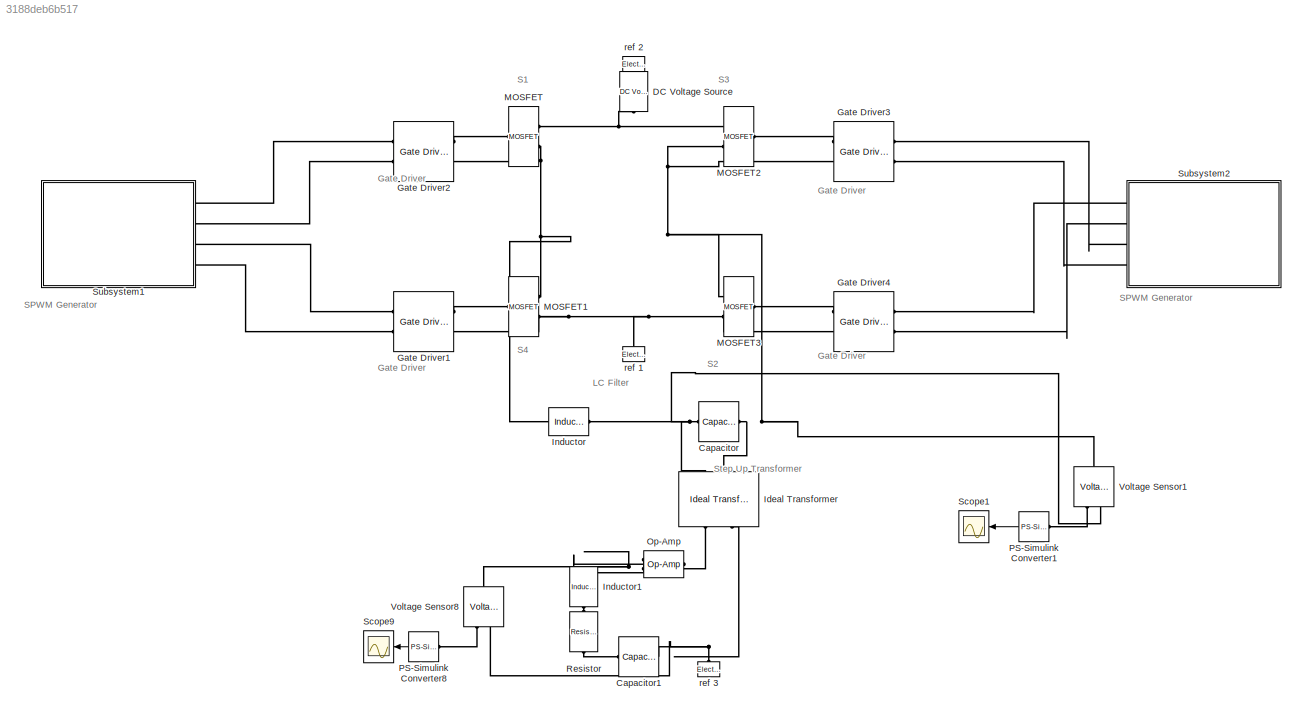
MODEL slx_3188deb6b517
KIND model
CONFIG AbsTol = auto
CONFIG EnableMultiTasking = off
CONFIG FixedStep = auto
CONFIG MaxStep = auto
CONFIG MinStep = auto
CONFIG RelTol = 1e-3
CONFIG SampleTimeConstraint = Unconstrained
CONFIG Solver = VariableStepAuto
CONFIG SolverName = VariableStepAuto
CONFIG StartTime = 0.0
CONFIG StopTime = 0.5
BLOCK [Reference] Capacitor  REF=fl_lib/Electrical/Electrical Elements/Capacitor
  Ports = [0, 0, 0, 0, 0, 1, 1]
  SourceBlock = fl_lib/Electrical/Electrical Elements/Capacitor
  SourceProductBaseCode = SS
  SourceProductName = Simscape
  SourceType = Capacitor
BLOCK [Reference] Capacitor1  REF=elec_lib/Passive Devices/Capacitor
  Ports = [0, 0, 0, 0, 0, 1, 1]
  SourceBlock = elec_lib/Passive Devices/Capacitor
  SourceProductBaseCode = SN
  SourceProductName = Simscape Electronics
  SourceType = Capacitor
BLOCK [Reference] DC Voltage Source  REF=fl_lib/Electrical/Electrical Sources/DC Voltage Source
  Ports = [0, 0, 0, 0, 0, 1, 1]
  SourceBlock = fl_lib/Electrical/Electrical Sources/DC Voltage Source
  SourceProductBaseCode = SS
  SourceProductName = Simscape
  SourceType = DC Voltage Source
BLOCK [Reference] Gate Driver1  REF=elec_lib/Actuators & Drivers/Drivers/Gate Driver
  Ports = [0, 0, 0, 0, 0, 2, 2]
  SourceBlock = elec_lib/Actuators & Drivers/Drivers/Gate Driver
  SourceProductBaseCode = SN
  SourceProductName = Simscape Electronics
  SourceType = Gate Driver
BLOCK [Reference] Gate Driver2  REF=elec_lib/Actuators & Drivers/Drivers/Gate Driver
  Ports = [0, 0, 0, 0, 0, 2, 2]
  SourceBlock = elec_lib/Actuators & Drivers/Drivers/Gate Driver
  SourceProductBaseCode = SN
  SourceProductName = Simscape Electronics
  SourceType = Gate Driver
BLOCK [Reference] Gate Driver3  REF=elec_lib/Actuators & Drivers/Drivers/Gate Driver
  Ports = [0, 0, 0, 0, 0, 2, 2]
  SourceBlock = elec_lib/Actuators & Drivers/Drivers/Gate Driver
  SourceProductBaseCode = SN
  SourceProductName = Simscape Electronics
  SourceType = Gate Driver
BLOCK [Reference] Gate Driver4  REF=elec_lib/Actuators & Drivers/Drivers/Gate Driver
  Ports = [0, 0, 0, 0, 0, 2, 2]
  SourceBlock = elec_lib/Actuators & Drivers/Drivers/Gate Driver
  SourceProductBaseCode = SN
  SourceProductName = Simscape Electronics
  SourceType = Gate Driver
BLOCK [Reference] Ideal Transformer  REF=fl_lib/Electrical/Electrical Elements/Ideal Transformer
  Ports = [0, 0, 0, 0, 0, 2, 2]
  SourceBlock = fl_lib/Electrical/Electrical Elements/Ideal Transformer
  SourceProductBaseCode = SS
  SourceProductName = Simscape
  SourceType = Ideal Transformer
BLOCK [Reference] Inductor  REF=elec_lib/Passive Devices/Inductor
  Ports = [0, 0, 0, 0, 0, 1, 1]
  SourceBlock = elec_lib/Passive Devices/Inductor
  SourceProductBaseCode = SN
  SourceProductName = Simscape Electronics
  SourceType = Inductor
BLOCK [Reference] Inductor1  REF=elec_lib/Passive Devices/Inductor
  Ports = [0, 0, 0, 0, 0, 1, 1]
  SourceBlock = elec_lib/Passive Devices/Inductor
  SourceProductBaseCode = SN
  SourceProductName = Simscape Electronics
  SourceType = Inductor
BLOCK [Reference] MOSFET  REF=pe_lib/Semiconductors/Fundamental
Components/MOSFET
  Ports = [0, 0, 0, 0, 0, 1, 2]
  SourceBlock = pe_lib/Semiconductors/Fundamental\nComponents/MOSFET
  SourceProductBaseCode = PS
  SourceProductName = Simscape Power Systems
  SourceType = MOSFET
BLOCK [Reference] MOSFET1  REF=pe_lib/Semiconductors/Fundamental
Components/MOSFET
  Ports = [0, 0, 0, 0, 0, 1, 2]
  SourceBlock = pe_lib/Semiconductors/Fundamental\nComponents/MOSFET
  SourceProductBaseCode = PS
  SourceProductName = Simscape Power Systems
  SourceType = MOSFET
BLOCK [Reference] MOSFET2  REF=pe_lib/Semiconductors/Fundamental
Components/MOSFET
  Ports = [0, 0, 0, 0, 0, 1, 2]
  SourceBlock = pe_lib/Semiconductors/Fundamental\nComponents/MOSFET
  SourceProductBaseCode = PS
  SourceProductName = Simscape Power Systems
  SourceType = MOSFET
BLOCK [Reference] MOSFET3  REF=pe_lib/Semiconductors/Fundamental
Components/MOSFET
  Ports = [0, 0, 0, 0, 0, 1, 2]
  SourceBlock = pe_lib/Semiconductors/Fundamental\nComponents/MOSFET
  SourceProductBaseCode = PS
  SourceProductName = Simscape Power Systems
  SourceType = MOSFET
BLOCK [Reference] Op-Amp  REF=fl_lib/Electrical/Electrical Elements/Op-Amp
  Ports = [0, 0, 0, 0, 0, 2, 1]
  SourceBlock = fl_lib/Electrical/Electrical Elements/Op-Amp
  SourceProductBaseCode = SS
  SourceProductName = Simscape
  SourceType = Op-Amp
BLOCK [Reference] PS-Simulink Converter1  REF=nesl_utility/PS-Simulink
Converter
  Ports = [0, 1, 0, 0, 0, 1]
  SourceBlock = nesl_utility/PS-Simulink\nConverter
  SourceProductBaseCode = SS
  SourceProductName = Simscape
  SourceType = PS-Simulink\nConverter
BLOCK [Reference] PS-Simulink Converter8  REF=nesl_utility/PS-Simulink
Converter
  Ports = [0, 1, 0, 0, 0, 1]
  SourceBlock = nesl_utility/PS-Simulink\nConverter
  SourceProductBaseCode = SS
  SourceProductName = Simscape
  SourceType = PS-Simulink\nConverter
BLOCK [Reference] Resistor  REF=elec_lib/Passive Devices/Resistor
  Ports = [0, 0, 0, 0, 0, 1, 1]
  SourceBlock = elec_lib/Passive Devices/Resistor
  SourceProductBaseCode = SN
  SourceProductName = Simscape Electronics
  SourceType = Resistor
BLOCK [Scope] Scope1
  Floating = off
  NumInputPorts = 1
  Ports = [1]
  ScopeSpecificationString = Simulink.scopes.TimeScopeBlockCfg('CurrentConfiguration', extmgr.ConfigurationSet(extmgr.Configuration('Core','General UI',true),extmgr.Configuration('Core','Source UI',true),extmgr.Configuration('Sources','WiredSimulink',true,'DataLoggingVariableName','ScopeData1'),extmgr.Configuration('Visuals','Time Domain',true,'SerializedDisplays',{struct('MinYLimReal','-20.10195','MaxYLimReal','19.04852','YL...<+1460ch>
BLOCK [Scope] Scope9
  Floating = off
  NumInputPorts = 1
  Ports = [1]
  ScopeSpecificationString = Simulink.scopes.TimeScopeBlockCfg('CurrentConfiguration', extmgr.ConfigurationSet(extmgr.Configuration('Core','General UI',true),extmgr.Configuration('Core','Source UI',true),extmgr.Configuration('Sources','WiredSimulink',true,'DataLoggingVariableName','ScopeData4'),extmgr.Configuration('Visuals','Time Domain',true,'SerializedDisplays',{struct('MinYLimReal','-390.34739','MaxYLimReal','391.3346','Y...<+1745ch>
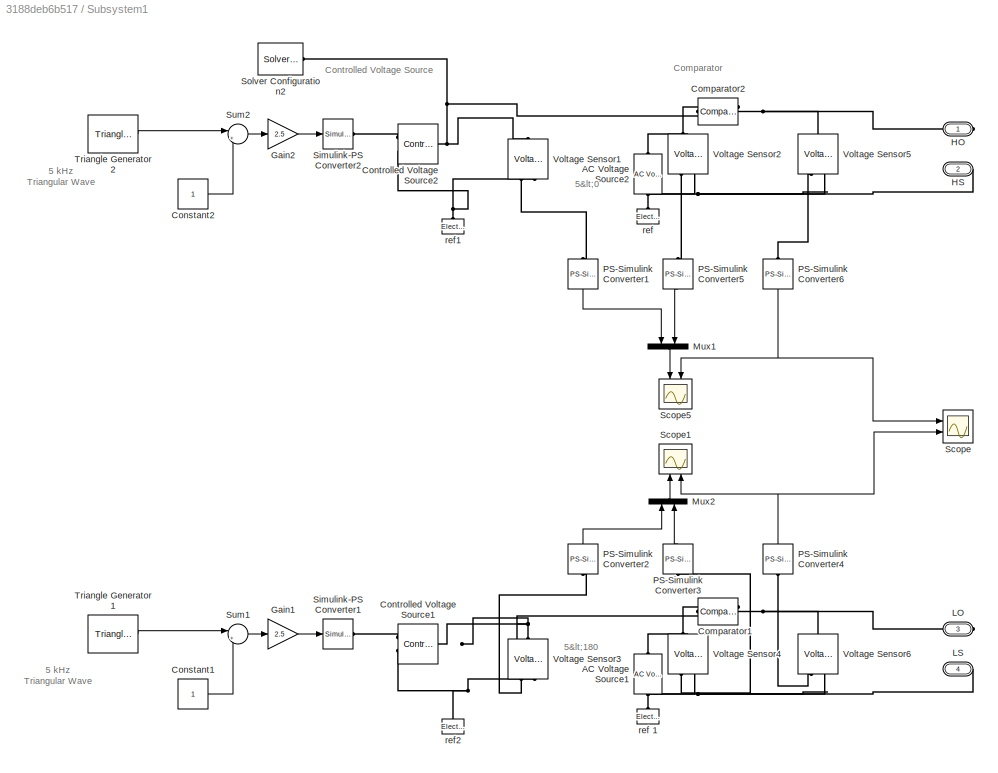
BLOCK [SubSystem] Subsystem1
  Ports = [0, 0, 0, 0, 0, 0, 4]
  RequestExecContextInheritance = off
BLOCK [Reference] Subsystem1/AC Voltage Source1  REF=fl_lib/Electrical/Electrical Sources/AC Voltage Source
  Ports = [0, 0, 0, 0, 0, 1, 1]
  SourceBlock = fl_lib/Electrical/Electrical Sources/AC Voltage Source
  SourceProductBaseCode = SS
  SourceProductName = Simscape
  SourceType = AC Voltage Source
BLOCK [Reference] Subsystem1/AC Voltage Source2  REF=fl_lib/Electrical/Electrical Sources/AC Voltage Source
  Ports = [0, 0, 0, 0, 0, 1, 1]
  SourceBlock = fl_lib/Electrical/Electrical Sources/AC Voltage Source
  SourceProductBaseCode = SS
  SourceProductName = Simscape
  SourceType = AC Voltage Source
BLOCK [Reference] Subsystem1/Comparator1  REF=elec_lib/Integrated Circuits/Comparator
  Ports = [0, 0, 0, 0, 0, 2, 1]
  SourceBlock = elec_lib/Integrated Circuits/Comparator
  SourceProductBaseCode = SN
  SourceProductName = Simscape Electronics
  SourceType = Comparator
BLOCK [Reference] Subsystem1/Comparator2  REF=elec_lib/Integrated Circuits/Comparator
  Ports = [0, 0, 0, 0, 0, 2, 1]
  SourceBlock = elec_lib/Integrated Circuits/Comparator
  SourceProductBaseCode = SN
  SourceProductName = Simscape Electronics
  SourceType = Comparator
BLOCK [Constant] Subsystem1/Constant1
BLOCK [Constant] Subsystem1/Constant2
BLOCK [Reference] Subsystem1/Controlled Voltage Source1  REF=fl_lib/Electrical/Electrical Sources/Controlled Voltage
Source
  Ports = [0, 0, 0, 0, 0, 1, 2]
  SourceBlock = fl_lib/Electrical/Electrical Sources/Controlled Voltage\nSource
  SourceProductBaseCode = SS
  SourceProductName = Simscape
  SourceType = Controlled Voltage\nSource
BLOCK [Reference] Subsystem1/Controlled Voltage Source2  REF=fl_lib/Electrical/Electrical Sources/Controlled Voltage
Source
  Ports = [0, 0, 0, 0, 0, 1, 2]
  SourceBlock = fl_lib/Electrical/Electrical Sources/Controlled Voltage\nSource
  SourceProductBaseCode = SS
  SourceProductName = Simscape
  SourceType = Controlled Voltage\nSource
BLOCK [Gain] Subsystem1/Gain1
  Gain = 2.5
  OutDataTypeStr = Inherit: Inherit via internal rule
  ParamDataTypeStr = Inherit: Inherit via internal rule
  SaturateOnIntegerOverflow = off
BLOCK [Gain] Subsystem1/Gain2
  Gain = 2.5
  OutDataTypeStr = Inherit: Inherit via internal rule
  ParamDataTypeStr = Inherit: Inherit via internal rule
  SaturateOnIntegerOverflow = off
BLOCK [PMIOPort] Subsystem1/HO
  Side = Right
BLOCK [PMIOPort] Subsystem1/HS
  Port = 2
  Side = Right
BLOCK [PMIOPort] Subsystem1/LO
  Port = 3
  Side = Right
BLOCK [PMIOPort] Subsystem1/LS
  Port = 4
  Side = Right
BLOCK [Mux] Subsystem1/Mux1
  DisplayOption = bar
  Inputs = 2
  Ports = [2, 1]
BLOCK [Mux] Subsystem1/Mux2
  DisplayOption = bar
  Inputs = 2
  Ports = [2, 1]
BLOCK [Reference] Subsystem1/PS-Simulink Converter1  REF=nesl_utility/PS-Simulink
Converter
  Ports = [0, 1, 0, 0, 0, 1]
  SourceBlock = nesl_utility/PS-Simulink\nConverter
  SourceProductBaseCode = SS
  SourceProductName = Simscape
  SourceType = PS-Simulink\nConverter
BLOCK [Reference] Subsystem1/PS-Simulink Converter2  REF=nesl_utility/PS-Simulink
Converter
  Ports = [0, 1, 0, 0, 0, 1]
  SourceBlock = nesl_utility/PS-Simulink\nConverter
  SourceProductBaseCode = SS
  SourceProductName = Simscape
  SourceType = PS-Simulink\nConverter
BLOCK [Reference] Subsystem1/PS-Simulink Converter3  REF=nesl_utility/PS-Simulink
Converter
  Ports = [0, 1, 0, 0, 0, 1]
  SourceBlock = nesl_utility/PS-Simulink\nConverter
  SourceProductBaseCode = SS
  SourceProductName = Simscape
  SourceType = PS-Simulink\nConverter
BLOCK [Reference] Subsystem1/PS-Simulink Converter4  REF=nesl_utility/PS-Simulink
Converter
  Ports = [0, 1, 0, 0, 0, 1]
  SourceBlock = nesl_utility/PS-Simulink\nConverter
  SourceProductBaseCode = SS
  SourceProductName = Simscape
  SourceType = PS-Simulink\nConverter
BLOCK [Reference] Subsystem1/PS-Simulink Converter5  REF=nesl_utility/PS-Simulink
Converter
  Ports = [0, 1, 0, 0, 0, 1]
  SourceBlock = nesl_utility/PS-Simulink\nConverter
  SourceProductBaseCode = SS
  SourceProductName = Simscape
  SourceType = PS-Simulink\nConverter
BLOCK [Reference] Subsystem1/PS-Simulink Converter6  REF=nesl_utility/PS-Simulink
Converter
  Ports = [0, 1, 0, 0, 0, 1]
  SourceBlock = nesl_utility/PS-Simulink\nConverter
  SourceProductBaseCode = SS
  SourceProductName = Simscape
  SourceType = PS-Simulink\nConverter
BLOCK [Scope] Subsystem1/Scope
  Floating = off
  NumInputPorts = 2
  Ports = [2]
  ScopeSpecificationString = Simulink.scopes.TimeScopeBlockCfg('CurrentConfiguration', extmgr.ConfigurationSet(extmgr.Configuration('Core','General UI',true),extmgr.Configuration('Core','Source UI',true),extmgr.Configuration('Sources','WiredSimulink',true,'DataLoggingVariableName','ScopeData1'),extmgr.Configuration('Visuals','Time Domain',true,'SerializedDisplays',{struct('MinYLimReal','-0.625','MaxYLimReal','5.625','YLabelRe...<+2094ch>
BLOCK [Scope] Subsystem1/Scope1
  Floating = off
  NumInputPorts = 2
  Ports = [2]
  ScopeSpecificationString = Simulink.scopes.TimeScopeBlockCfg('CurrentConfiguration', extmgr.ConfigurationSet(extmgr.Configuration('Core','General UI',true),extmgr.Configuration('Core','Source UI',true),extmgr.Configuration('Sources','WiredSimulink',true,'DataLoggingVariableName','ScopeData2'),extmgr.Configuration('Visuals','Time Domain',true,'SerializedDisplays',{struct('MinYLimReal','-6.25','MaxYLimReal','6.25','YLabelReal...<+2076ch>
BLOCK [Scope] Subsystem1/Scope5
  Floating = off
  NumInputPorts = 2
  Ports = [2]
  ScopeSpecificationString = Simulink.scopes.TimeScopeBlockCfg('CurrentConfiguration', extmgr.ConfigurationSet(extmgr.Configuration('Core','General UI',true,'FigureColor',[0 0 0]),extmgr.Configuration('Core','Source UI',true),extmgr.Configuration('Sources','WiredSimulink',true,'DataLoggingVariableName','ScopeData1'),extmgr.Configuration('Visuals','Time Domain',true,'TimeAxisLabels','All','SerializedDisplays',{struct('MinYLimR...<+2286ch>
BLOCK [Reference] Subsystem1/Simulink-PS Converter1  REF=nesl_utility/Simulink-PS
Converter
  Ports = [1, 0, 0, 0, 0, 0, 1]
  SourceBlock = nesl_utility/Simulink-PS\nConverter
  SourceProductBaseCode = SS
  SourceProductName = Simscape
  SourceType = Simulink-PS\nConverter
BLOCK [Reference] Subsystem1/Simulink-PS Converter2  REF=nesl_utility/Simulink-PS
Converter
  Ports = [1, 0, 0, 0, 0, 0, 1]
  SourceBlock = nesl_utility/Simulink-PS\nConverter
  SourceProductBaseCode = SS
  SourceProductName = Simscape
  SourceType = Simulink-PS\nConverter
BLOCK [Reference] Subsystem1/Solver Configuration2  REF=nesl_utility/Solver
Configuration
  Ports = [0, 0, 0, 0, 0, 0, 1]
  SourceBlock = nesl_utility/Solver\nConfiguration
  SourceProductBaseCode = SS
  SourceProductName = Simscape
  SourceType = Solver\nConfiguration
BLOCK [Sum] Subsystem1/Sum1
  IconShape = round
  InputSameDT = off
  Inputs = |++
  OutDataTypeStr = Inherit: Inherit via internal rule
  Ports = [2, 1]
  SaturateOnIntegerOverflow = off
BLOCK [Sum] Subsystem1/Sum2
  IconShape = round
  InputSameDT = off
  Inputs = |++
  OutDataTypeStr = Inherit: Inherit via internal rule
  Ports = [2, 1]
  SaturateOnIntegerOverflow = off
BLOCK [Reference] Subsystem1/Triangle Generator1  REF=powerlib_meascontrol/Pulse & Signal
Generators/Triangle
Generator
  Ports = [0, 1]
  SourceBlock = powerlib_meascontrol/Pulse & Signal\nGenerators/Triangle\nGenerator
  SourceProductBaseCode = PS
  SourceProductName = Simscape Power Systems
  SourceType = Triangle Generator
BLOCK [Reference] Subsystem1/Triangle Generator2  REF=powerlib_meascontrol/Pulse & Signal
Generators/Triangle
Generator
  Ports = [0, 1]
  SourceBlock = powerlib_meascontrol/Pulse & Signal\nGenerators/Triangle\nGenerator
  SourceProductBaseCode = PS
  SourceProductName = Simscape Power Systems
  SourceType = Triangle Generator
BLOCK [Reference] Subsystem1/Voltage Sensor1  REF=fl_lib/Electrical/Electrical Sensors/Voltage Sensor
  Ports = [0, 0, 0, 0, 0, 1, 2]
  SourceBlock = fl_lib/Electrical/Electrical Sensors/Voltage Sensor
  SourceProductBaseCode = SS
  SourceProductName = Simscape
  SourceType = Voltage Sensor
BLOCK [Reference] Subsystem1/Voltage Sensor2  REF=fl_lib/Electrical/Electrical Sensors/Voltage Sensor
  Ports = [0, 0, 0, 0, 0, 1, 2]
  SourceBlock = fl_lib/Electrical/Electrical Sensors/Voltage Sensor
  SourceProductBaseCode = SS
  SourceProductName = Simscape
  SourceType = Voltage Sensor
BLOCK [Reference] Subsystem1/Voltage Sensor3  REF=fl_lib/Electrical/Electrical Sensors/Voltage Sensor
  Ports = [0, 0, 0, 0, 0, 1, 2]
  SourceBlock = fl_lib/Electrical/Electrical Sensors/Voltage Sensor
  SourceProductBaseCode = SS
  SourceProductName = Simscape
  SourceType = Voltage Sensor
BLOCK [Reference] Subsystem1/Voltage Sensor4  REF=fl_lib/Electrical/Electrical Sensors/Voltage Sensor
  Ports = [0, 0, 0, 0, 0, 1, 2]
  SourceBlock = fl_lib/Electrical/Electrical Sensors/Voltage Sensor
  SourceProductBaseCode = SS
  SourceProductName = Simscape
  SourceType = Voltage Sensor
BLOCK [Reference] Subsystem1/Voltage Sensor5  REF=fl_lib/Electrical/Electrical Sensors/Voltage Sensor
  Ports = [0, 0, 0, 0, 0, 1, 2]
  SourceBlock = fl_lib/Electrical/Electrical Sensors/Voltage Sensor
  SourceProductBaseCode = SS
  SourceProductName = Simscape
  SourceType = Voltage Sensor
BLOCK [Reference] Subsystem1/Voltage Sensor6  REF=fl_lib/Electrical/Electrical Sensors/Voltage Sensor
  Ports = [0, 0, 0, 0, 0, 1, 2]
  SourceBlock = fl_lib/Electrical/Electrical Sensors/Voltage Sensor
  SourceProductBaseCode = SS
  SourceProductName = Simscape
  SourceType = Voltage Sensor
BLOCK [Reference] Subsystem1/ref   REF=fl_lib/Electrical/Electrical Elements/Electrical Reference
  Ports = [0, 0, 0, 0, 0, 1]
  SourceBlock = fl_lib/Electrical/Electrical Elements/Electrical Reference
  SourceProductBaseCode = SS
  SourceProductName = Simscape
  SourceType = Electrical Reference
BLOCK [Reference] Subsystem1/ref 1  REF=fl_lib/Electrical/Electrical Elements/Electrical Reference
  Ports = [0, 0, 0, 0, 0, 1]
  SourceBlock = fl_lib/Electrical/Electrical Elements/Electrical Reference
  SourceProductBaseCode = SS
  SourceProductName = Simscape
  SourceType = Electrical Reference
BLOCK [Reference] Subsystem1/ref1  REF=fl_lib/Electrical/Electrical Elements/Electrical Reference
  Ports = [0, 0, 0, 0, 0, 1]
  SourceBlock = fl_lib/Electrical/Electrical Elements/Electrical Reference
  SourceProductBaseCode = SS
  SourceProductName = Simscape
  SourceType = Electrical Reference
BLOCK [Reference] Subsystem1/ref2  REF=fl_lib/Electrical/Electrical Elements/Electrical Reference
  Ports = [0, 0, 0, 0, 0, 1]
  SourceBlock = fl_lib/Electrical/Electrical Elements/Electrical Reference
  SourceProductBaseCode = SS
  SourceProductName = Simscape
  SourceType = Electrical Reference
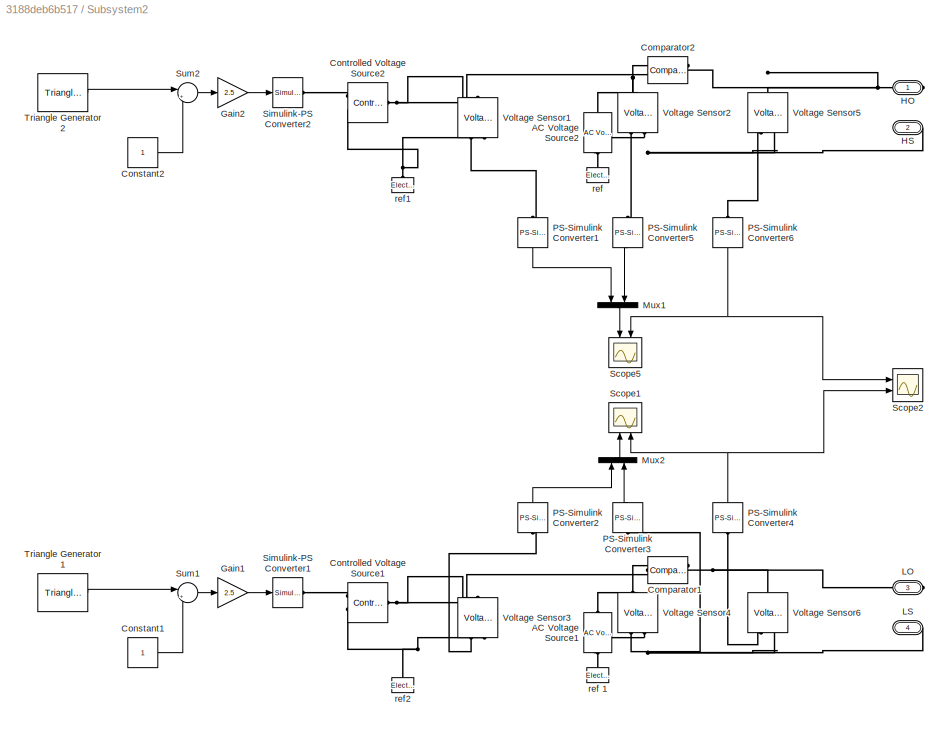
BLOCK [SubSystem] Subsystem2
  Ports = [0, 0, 0, 0, 0, 0, 4]
  RequestExecContextInheritance = off
BLOCK [Reference] Subsystem2/AC Voltage Source1  REF=fl_lib/Electrical/Electrical Sources/AC Voltage Source
  Ports = [0, 0, 0, 0, 0, 1, 1]
  SourceBlock = fl_lib/Electrical/Electrical Sources/AC Voltage Source
  SourceProductBaseCode = SS
  SourceProductName = Simscape
  SourceType = AC Voltage Source
BLOCK [Reference] Subsystem2/AC Voltage Source2  REF=fl_lib/Electrical/Electrical Sources/AC Voltage Source
  Ports = [0, 0, 0, 0, 0, 1, 1]
  SourceBlock = fl_lib/Electrical/Electrical Sources/AC Voltage Source
  SourceProductBaseCode = SS
  SourceProductName = Simscape
  SourceType = AC Voltage Source
BLOCK [Reference] Subsystem2/Comparator1  REF=elec_lib/Integrated Circuits/Comparator
  Ports = [0, 0, 0, 0, 0, 2, 1]
  SourceBlock = elec_lib/Integrated Circuits/Comparator
  SourceProductBaseCode = SN
  SourceProductName = Simscape Electronics
  SourceType = Comparator
BLOCK [Reference] Subsystem2/Comparator2  REF=elec_lib/Integrated Circuits/Comparator
  Ports = [0, 0, 0, 0, 0, 2, 1]
  SourceBlock = elec_lib/Integrated Circuits/Comparator
  SourceProductBaseCode = SN
  SourceProductName = Simscape Electronics
  SourceType = Comparator
BLOCK [Constant] Subsystem2/Constant1
BLOCK [Constant] Subsystem2/Constant2
BLOCK [Reference] Subsystem2/Controlled Voltage Source1  REF=fl_lib/Electrical/Electrical Sources/Controlled Voltage
Source
  Ports = [0, 0, 0, 0, 0, 1, 2]
  SourceBlock = fl_lib/Electrical/Electrical Sources/Controlled Voltage\nSource
  SourceProductBaseCode = SS
  SourceProductName = Simscape
  SourceType = Controlled Voltage\nSource
BLOCK [Reference] Subsystem2/Controlled Voltage Source2  REF=fl_lib/Electrical/Electrical Sources/Controlled Voltage
Source
  Ports = [0, 0, 0, 0, 0, 1, 2]
  SourceBlock = fl_lib/Electrical/Electrical Sources/Controlled Voltage\nSource
  SourceProductBaseCode = SS
  SourceProductName = Simscape
  SourceType = Controlled Voltage\nSource
BLOCK [Gain] Subsystem2/Gain1
  Gain = 2.5
  OutDataTypeStr = Inherit: Inherit via internal rule
  ParamDataTypeStr = Inherit: Inherit via internal rule
  SaturateOnIntegerOverflow = off
BLOCK [Gain] Subsystem2/Gain2
  Gain = 2.5
  OutDataTypeStr = Inherit: Inherit via internal rule
  ParamDataTypeStr = Inherit: Inherit via internal rule
  SaturateOnIntegerOverflow = off
BLOCK [PMIOPort] Subsystem2/HO
  Side = Right
BLOCK [PMIOPort] Subsystem2/HS
  Port = 2
  Side = Right
BLOCK [PMIOPort] Subsystem2/LO
  Port = 3
  Side = Right
BLOCK [PMIOPort] Subsystem2/LS
  Port = 4
  Side = Right
BLOCK [Mux] Subsystem2/Mux1
  DisplayOption = bar
  Inputs = 2
  Ports = [2, 1]
BLOCK [Mux] Subsystem2/Mux2
  DisplayOption = bar
  Inputs = 2
  Ports = [2, 1]
BLOCK [Reference] Subsystem2/PS-Simulink Converter1  REF=nesl_utility/PS-Simulink
Converter
  Ports = [0, 1, 0, 0, 0, 1]
  SourceBlock = nesl_utility/PS-Simulink\nConverter
  SourceProductBaseCode = SS
  SourceProductName = Simscape
  SourceType = PS-Simulink\nConverter
BLOCK [Reference] Subsystem2/PS-Simulink Converter2  REF=nesl_utility/PS-Simulink
Converter
  Ports = [0, 1, 0, 0, 0, 1]
  SourceBlock = nesl_utility/PS-Simulink\nConverter
  SourceProductBaseCode = SS
  SourceProductName = Simscape
  SourceType = PS-Simulink\nConverter
BLOCK [Reference] Subsystem2/PS-Simulink Converter3  REF=nesl_utility/PS-Simulink
Converter
  Ports = [0, 1, 0, 0, 0, 1]
  SourceBlock = nesl_utility/PS-Simulink\nConverter
  SourceProductBaseCode = SS
  SourceProductName = Simscape
  SourceType = PS-Simulink\nConverter
BLOCK [Reference] Subsystem2/PS-Simulink Converter4  REF=nesl_utility/PS-Simulink
Converter
  Ports = [0, 1, 0, 0, 0, 1]
  SourceBlock = nesl_utility/PS-Simulink\nConverter
  SourceProductBaseCode = SS
  SourceProductName = Simscape
  SourceType = PS-Simulink\nConverter
BLOCK [Reference] Subsystem2/PS-Simulink Converter5  REF=nesl_utility/PS-Simulink
Converter
  Ports = [0, 1, 0, 0, 0, 1]
  SourceBlock = nesl_utility/PS-Simulink\nConverter
  SourceProductBaseCode = SS
  SourceProductName = Simscape
  SourceType = PS-Simulink\nConverter
BLOCK [Reference] Subsystem2/PS-Simulink Converter6  REF=nesl_utility/PS-Simulink
Converter
  Ports = [0, 1, 0, 0, 0, 1]
  SourceBlock = nesl_utility/PS-Simulink\nConverter
  SourceProductBaseCode = SS
  SourceProductName = Simscape
  SourceType = PS-Simulink\nConverter
BLOCK [Scope] Subsystem2/Scope1
  Floating = off
  NumInputPorts = 2
  Ports = [2]
  ScopeSpecificationString = Simulink.scopes.TimeScopeBlockCfg('CurrentConfiguration', extmgr.ConfigurationSet(extmgr.Configuration('Core','General UI',true),extmgr.Configuration('Core','Source UI',true),extmgr.Configuration('Sources','WiredSimulink',true,'DataLoggingVariableName','ScopeData2'),extmgr.Configuration('Visuals','Time Domain',true,'SerializedDisplays',{struct('MinYLimReal','-6.25','MaxYLimReal','6.25','YLabelReal...<+2028ch>
BLOCK [Scope] Subsystem2/Scope2
  Floating = off
  NumInputPorts = 2
  Ports = [2]
  ScopeSpecificationString = Simulink.scopes.TimeScopeBlockCfg('CurrentConfiguration', extmgr.ConfigurationSet(extmgr.Configuration('Core','General UI',true),extmgr.Configuration('Core','Source UI',true),extmgr.Configuration('Sources','WiredSimulink',true,'DataLoggingVariableName','ScopeData3'),extmgr.Configuration('Visuals','Time Domain',true,'SerializedDisplays',{struct('MinYLimReal','-0.625','MaxYLimReal','5.625','YLabelRe...<+2003ch>
BLOCK [Scope] Subsystem2/Scope5
  Floating = off
  NumInputPorts = 2
  Ports = [2]
  ScopeSpecificationString = Simulink.scopes.TimeScopeBlockCfg('CurrentConfiguration', extmgr.ConfigurationSet(extmgr.Configuration('Core','General UI',true,'FigureColor',[0 0 0]),extmgr.Configuration('Core','Source UI',true),extmgr.Configuration('Sources','WiredSimulink',true,'DataLoggingVariableName','ScopeData1'),extmgr.Configuration('Visuals','Time Domain',true,'SerializedDisplays',{struct('MinYLimReal','-6.25','MaxYLimRe...<+2130ch>
BLOCK [Reference] Subsystem2/Simulink-PS Converter1  REF=nesl_utility/Simulink-PS
Converter
  Ports = [1, 0, 0, 0, 0, 0, 1]
  SourceBlock = nesl_utility/Simulink-PS\nConverter
  SourceProductBaseCode = SS
  SourceProductName = Simscape
  SourceType = Simulink-PS\nConverter
BLOCK [Reference] Subsystem2/Simulink-PS Converter2  REF=nesl_utility/Simulink-PS
Converter
  Ports = [1, 0, 0, 0, 0, 0, 1]
  SourceBlock = nesl_utility/Simulink-PS\nConverter
  SourceProductBaseCode = SS
  SourceProductName = Simscape
  SourceType = Simulink-PS\nConverter
BLOCK [Sum] Subsystem2/Sum1
  IconShape = round
  InputSameDT = off
  Inputs = |++
  OutDataTypeStr = Inherit: Inherit via internal rule
  Ports = [2, 1]
  SaturateOnIntegerOverflow = off
BLOCK [Sum] Subsystem2/Sum2
  IconShape = round
  InputSameDT = off
  Inputs = |++
  OutDataTypeStr = Inherit: Inherit via internal rule
  Ports = [2, 1]
  SaturateOnIntegerOverflow = off
BLOCK [Reference] Subsystem2/Triangle Generator1  REF=powerlib_meascontrol/Pulse & Signal
Generators/Triangle
Generator
  Ports = [0, 1]
  SourceBlock = powerlib_meascontrol/Pulse & Signal\nGenerators/Triangle\nGenerator
  SourceProductBaseCode = PS
  SourceProductName = Simscape Power Systems
  SourceType = Triangle Generator
BLOCK [Reference] Subsystem2/Triangle Generator2  REF=powerlib_meascontrol/Pulse & Signal
Generators/Triangle
Generator
  Ports = [0, 1]
  SourceBlock = powerlib_meascontrol/Pulse & Signal\nGenerators/Triangle\nGenerator
  SourceProductBaseCode = PS
  SourceProductName = Simscape Power Systems
  SourceType = Triangle Generator
BLOCK [Reference] Subsystem2/Voltage Sensor1  REF=fl_lib/Electrical/Electrical Sensors/Voltage Sensor
  Ports = [0, 0, 0, 0, 0, 1, 2]
  SourceBlock = fl_lib/Electrical/Electrical Sensors/Voltage Sensor
  SourceProductBaseCode = SS
  SourceProductName = Simscape
  SourceType = Voltage Sensor
BLOCK [Reference] Subsystem2/Voltage Sensor2  REF=fl_lib/Electrical/Electrical Sensors/Voltage Sensor
  Ports = [0, 0, 0, 0, 0, 1, 2]
  SourceBlock = fl_lib/Electrical/Electrical Sensors/Voltage Sensor
  SourceProductBaseCode = SS
  SourceProductName = Simscape
  SourceType = Voltage Sensor
BLOCK [Reference] Subsystem2/Voltage Sensor3  REF=fl_lib/Electrical/Electrical Sensors/Voltage Sensor
  Ports = [0, 0, 0, 0, 0, 1, 2]
  SourceBlock = fl_lib/Electrical/Electrical Sensors/Voltage Sensor
  SourceProductBaseCode = SS
  SourceProductName = Simscape
  SourceType = Voltage Sensor
BLOCK [Reference] Subsystem2/Voltage Sensor4  REF=fl_lib/Electrical/Electrical Sensors/Voltage Sensor
  Ports = [0, 0, 0, 0, 0, 1, 2]
  SourceBlock = fl_lib/Electrical/Electrical Sensors/Voltage Sensor
  SourceProductBaseCode = SS
  SourceProductName = Simscape
  SourceType = Voltage Sensor
BLOCK [Reference] Subsystem2/Voltage Sensor5  REF=fl_lib/Electrical/Electrical Sensors/Voltage Sensor
  Ports = [0, 0, 0, 0, 0, 1, 2]
  SourceBlock = fl_lib/Electrical/Electrical Sensors/Voltage Sensor
  SourceProductBaseCode = SS
  SourceProductName = Simscape
  SourceType = Voltage Sensor
BLOCK [Reference] Subsystem2/Voltage Sensor6  REF=fl_lib/Electrical/Electrical Sensors/Voltage Sensor
  Ports = [0, 0, 0, 0, 0, 1, 2]
  SourceBlock = fl_lib/Electrical/Electrical Sensors/Voltage Sensor
  SourceProductBaseCode = SS
  SourceProductName = Simscape
  SourceType = Voltage Sensor
BLOCK [Reference] Subsystem2/ref   REF=fl_lib/Electrical/Electrical Elements/Electrical Reference
  Ports = [0, 0, 0, 0, 0, 1]
  SourceBlock = fl_lib/Electrical/Electrical Elements/Electrical Reference
  SourceProductBaseCode = SS
  SourceProductName = Simscape
  SourceType = Electrical Reference
BLOCK [Reference] Subsystem2/ref 1  REF=fl_lib/Electrical/Electrical Elements/Electrical Reference
  Ports = [0, 0, 0, 0, 0, 1]
  SourceBlock = fl_lib/Electrical/Electrical Elements/Electrical Reference
  SourceProductBaseCode = SS
  SourceProductName = Simscape
  SourceType = Electrical Reference
BLOCK [Reference] Subsystem2/ref1  REF=fl_lib/Electrical/Electrical Elements/Electrical Reference
  Ports = [0, 0, 0, 0, 0, 1]
  SourceBlock = fl_lib/Electrical/Electrical Elements/Electrical Reference
  SourceProductBaseCode = SS
  SourceProductName = Simscape
  SourceType = Electrical Reference
BLOCK [Reference] Subsystem2/ref2  REF=fl_lib/Electrical/Electrical Elements/Electrical Reference
  Ports = [0, 0, 0, 0, 0, 1]
  SourceBlock = fl_lib/Electrical/Electrical Elements/Electrical Reference
  SourceProductBaseCode = SS
  SourceProductName = Simscape
  SourceType = Electrical Reference
BLOCK [Reference] Voltage Sensor1  REF=fl_lib/Electrical/Electrical Sensors/Voltage Sensor
  Ports = [0, 0, 0, 0, 0, 1, 2]
  SourceBlock = fl_lib/Electrical/Electrical Sensors/Voltage Sensor
  SourceProductBaseCode = SS
  SourceProductName = Simscape
  SourceType = Voltage Sensor
BLOCK [Reference] Voltage Sensor8  REF=fl_lib/Electrical/Electrical Sensors/Voltage Sensor
  Ports = [0, 0, 0, 0, 0, 1, 2]
  SourceBlock = fl_lib/Electrical/Electrical Sensors/Voltage Sensor
  SourceProductBaseCode = SS
  SourceProductName = Simscape
  SourceType = Voltage Sensor
BLOCK [Reference] ref 1  REF=fl_lib/Electrical/Electrical Elements/Electrical Reference
  Ports = [0, 0, 0, 0, 0, 1]
  SourceBlock = fl_lib/Electrical/Electrical Elements/Electrical Reference
  SourceProductBaseCode = SS
  SourceProductName = Simscape
  SourceType = Electrical Reference
BLOCK [Reference] ref 2  REF=fl_lib/Electrical/Electrical Elements/Electrical Reference
  Ports = [0, 0, 0, 0, 0, 1]
  SourceBlock = fl_lib/Electrical/Electrical Elements/Electrical Reference
  SourceProductBaseCode = SS
  SourceProductName = Simscape
  SourceType = Electrical Reference
BLOCK [Reference] ref 3  REF=fl_lib/Electrical/Electrical Elements/Electrical Reference
  Ports = [0, 0, 0, 0, 0, 1]
  SourceBlock = fl_lib/Electrical/Electrical Elements/Electrical Reference
  SourceProductBaseCode = SS
  SourceProductName = Simscape
  SourceType = Electrical Reference
ANNOTATION (root): SPWM Generator
ANNOTATION (root): S1
ANNOTATION (root): S2
ANNOTATION (root): S3
ANNOTATION (root): S4
ANNOTATION (root): Gate Driver
ANNOTATION (root): LC Filter
ANNOTATION (root): Step Up Transformer
ANNOTATION Subsystem1: 5 kHz Triangular Wave
ANNOTATION Subsystem1: Controlled Voltage Source
ANNOTATION Subsystem1: 5<0
ANNOTATION Subsystem1: 5<180
ANNOTATION Subsystem1: Comparator
LINE PS-Simulink Converter1:1 -> Scope1:1
LINE PS-Simulink Converter8:1 -> Scope9:1
LINE Subsystem1/Constant1:1 -> Subsystem1/Sum1:2
LINE Subsystem1/Constant2:1 -> Subsystem1/Sum2:2
LINE Subsystem1/Gain1:1 -> Subsystem1/Simulink-PS Converter1:1
LINE Subsystem1/Gain2:1 -> Subsystem1/Simulink-PS Converter2:1
LINE Subsystem1/Mux1:1 -> Subsystem1/Scope5:1
LINE Subsystem1/Mux2:1 -> Subsystem1/Scope1:1
LINE Subsystem1/PS-Simulink Converter1:1 -> Subsystem1/Mux1:1
LINE Subsystem1/PS-Simulink Converter2:1 -> Subsystem1/Mux2:1
LINE Subsystem1/PS-Simulink Converter3:1 -> Subsystem1/Mux2:2
NET Subsystem1/PS-Simulink Converter4:1 -> Subsystem1/Scope1:2, Subsystem1/Scope:2
LINE Subsystem1/PS-Simulink Converter5:1 -> Subsystem1/Mux1:2
NET Subsystem1/PS-Simulink Converter6:1 -> Subsystem1/Scope5:2, Subsystem1/Scope:1
LINE Subsystem1/Sum1:1 -> Subsystem1/Gain1:1
LINE Subsystem1/Sum2:1 -> Subsystem1/Gain2:1
LINE Subsystem1/Triangle Generator1:1 -> Subsystem1/Sum1:1
LINE Subsystem1/Triangle Generator2:1 -> Subsystem1/Sum2:1
LINE Subsystem2/Constant1:1 -> Subsystem2/Sum1:2
LINE Subsystem2/Constant2:1 -> Subsystem2/Sum2:2
LINE Subsystem2/Gain1:1 -> Subsystem2/Simulink-PS Converter1:1
LINE Subsystem2/Gain2:1 -> Subsystem2/Simulink-PS Converter2:1
LINE Subsystem2/Mux1:1 -> Subsystem2/Scope5:1
LINE Subsystem2/Mux2:1 -> Subsystem2/Scope1:1
LINE Subsystem2/PS-Simulink Converter1:1 -> Subsystem2/Mux1:1
LINE Subsystem2/PS-Simulink Converter2:1 -> Subsystem2/Mux2:1
LINE Subsystem2/PS-Simulink Converter3:1 -> Subsystem2/Mux2:2
NET Subsystem2/PS-Simulink Converter4:1 -> Subsystem2/Scope1:2, Subsystem2/Scope2:2
LINE Subsystem2/PS-Simulink Converter5:1 -> Subsystem2/Mux1:2
NET Subsystem2/PS-Simulink Converter6:1 -> Subsystem2/Scope2:1, Subsystem2/Scope5:2
LINE Subsystem2/Sum1:1 -> Subsystem2/Gain1:1
LINE Subsystem2/Sum2:1 -> Subsystem2/Gain2:1
LINE Subsystem2/Triangle Generator1:1 -> Subsystem2/Sum1:1
LINE Subsystem2/Triangle Generator2:1 -> Subsystem2/Sum2:1
PLINE Capacitor1:LConn1 -- Resistor:RConn1
PNET net1: Capacitor1:RConn1 -- Ideal Transformer:RConn2 -- Voltage Sensor8:RConn2 -- ref 3:LConn1
PNET net2: Capacitor:LConn1 -- Ideal Transformer:LConn1 -- Inductor:RConn1 -- Voltage Sensor1:RConn2
PNET net3: Capacitor:RConn1 -- Gate Driver3:RConn2 -- Ideal Transformer:LConn2 -- MOSFET2:RConn2 -- MOSFET3:RConn1 -- Voltage Sensor1:LConn1
PNET net4: DC Voltage Source:LConn1 -- MOSFET2:RConn1 -- MOSFET:RConn1
PLINE DC Voltage Source:RConn1 -- ref 2:LConn1
PLINE Gate Driver1:LConn1 -- Subsystem1:RConn3
PLINE Gate Driver1:LConn2 -- Subsystem1:RConn4
PLINE Gate Driver1:RConn1 -- MOSFET1:LConn1
PNET net5: Gate Driver1:RConn2 -- Gate Driver4:RConn2 -- MOSFET1:RConn2 -- MOSFET3:RConn2 -- ref 1:LConn1
PLINE Gate Driver2:LConn1 -- Subsystem1:RConn1
PLINE Gate Driver2:LConn2 -- Subsystem1:RConn2
PLINE Gate Driver2:RConn1 -- MOSFET:LConn1
PNET net6: Gate Driver2:RConn2 -- Inductor:LConn1 -- MOSFET1:RConn1 -- MOSFET:RConn2
PLINE Gate Driver3:LConn1 -- Subsystem2:RConn3
PLINE Gate Driver3:LConn2 -- Subsystem2:RConn4
PLINE Gate Driver3:RConn1 -- MOSFET2:LConn1
PLINE Gate Driver4:LConn1 -- Subsystem2:RConn1
PLINE Gate Driver4:LConn2 -- Subsystem2:RConn2
PLINE Gate Driver4:RConn1 -- MOSFET3:LConn1
PLINE Ideal Transformer:RConn1 -- Op-Amp:LConn2
PNET net7: Inductor1:LConn1 -- Op-Amp:LConn1 -- Op-Amp:RConn1 -- Voltage Sensor8:LConn1
PLINE Inductor1:RConn1 -- Resistor:LConn1
PLINE PS-Simulink Converter1:LConn1 -- Voltage Sensor1:RConn1
PLINE PS-Simulink Converter8:LConn1 -- Voltage Sensor8:RConn1
PNET net8: Subsystem1/AC Voltage Source1:LConn1 -- Subsystem1/Comparator1:LConn1 -- Subsystem1/Voltage Sensor4:LConn1
PNET net9: Subsystem1/AC Voltage Source1:RConn1 -- Subsystem1/LS:RConn1 -- Subsystem1/Voltage Sensor4:RConn2 -- Subsystem1/Voltage Sensor6:RConn2 -- Subsystem1/ref 1:LConn1
PNET net10: Subsystem1/AC Voltage Source2:LConn1 -- Subsystem1/Comparator2:LConn1 -- Subsystem1/Voltage Sensor2:LConn1
PNET net11: Subsystem1/AC Voltage Source2:RConn1 -- Subsystem1/HS:RConn1 -- Subsystem1/Voltage Sensor2:RConn2 -- Subsystem1/Voltage Sensor5:RConn2 -- Subsystem1/ref :LConn1
PNET net12: Subsystem1/Comparator1:LConn2 -- Subsystem1/Controlled Voltage Source1:LConn1 -- Subsystem1/Voltage Sensor3:LConn1
PNET net13: Subsystem1/Comparator1:RConn1 -- Subsystem1/LO:RConn1 -- Subsystem1/Voltage Sensor6:LConn1
PNET net14: Subsystem1/Comparator2:LConn2 -- Subsystem1/Controlled Voltage Source2:LConn1 -- Subsystem1/Solver Configuration2:RConn1 -- Subsystem1/Voltage Sensor1:LConn1
PNET net15: Subsystem1/Comparator2:RConn1 -- Subsystem1/HO:RConn1 -- Subsystem1/Voltage Sensor5:LConn1
PLINE Subsystem1/Controlled Voltage Source1:RConn1 -- Subsystem1/Simulink-PS Converter1:RConn1
PNET net16: Subsystem1/Controlled Voltage Source1:RConn2 -- Subsystem1/Voltage Sensor3:RConn2 -- Subsystem1/ref2:LConn1
PLINE Subsystem1/Controlled Voltage Source2:RConn1 -- Subsystem1/Simulink-PS Converter2:RConn1
PNET net17: Subsystem1/Controlled Voltage Source2:RConn2 -- Subsystem1/Voltage Sensor1:RConn2 -- Subsystem1/ref1:LConn1
PLINE Subsystem1/PS-Simulink Converter1:LConn1 -- Subsystem1/Voltage Sensor1:RConn1
PLINE Subsystem1/PS-Simulink Converter2:LConn1 -- Subsystem1/Voltage Sensor3:RConn1
PLINE Subsystem1/PS-Simulink Converter3:LConn1 -- Subsystem1/Voltage Sensor4:RConn1
PLINE Subsystem1/PS-Simulink Converter4:LConn1 -- Subsystem1/Voltage Sensor6:RConn1
PLINE Subsystem1/PS-Simulink Converter5:LConn1 -- Subsystem1/Voltage Sensor2:RConn1
PLINE Subsystem1/PS-Simulink Converter6:LConn1 -- Subsystem1/Voltage Sensor5:RConn1
PNET net18: Subsystem2/AC Voltage Source1:LConn1 -- Subsystem2/Comparator1:LConn1 -- Subsystem2/Voltage Sensor4:LConn1
PNET net19: Subsystem2/AC Voltage Source1:RConn1 -- Subsystem2/LS:RConn1 -- Subsystem2/Voltage Sensor4:RConn2 -- Subsystem2/Voltage Sensor6:RConn2 -- Subsystem2/ref 1:LConn1
PNET net20: Subsystem2/AC Voltage Source2:LConn1 -- Subsystem2/Comparator2:LConn1 -- Subsystem2/Voltage Sensor2:LConn1
PNET net21: Subsystem2/AC Voltage Source2:RConn1 -- Subsystem2/HS:RConn1 -- Subsystem2/Voltage Sensor2:RConn2 -- Subsystem2/Voltage Sensor5:RConn2 -- Subsystem2/ref :LConn1
PNET net22: Subsystem2/Comparator1:LConn2 -- Subsystem2/Controlled Voltage Source1:LConn1 -- Subsystem2/Voltage Sensor3:LConn1
PNET net23: Subsystem2/Comparator1:RConn1 -- Subsystem2/LO:RConn1 -- Subsystem2/Voltage Sensor6:LConn1
PNET net24: Subsystem2/Comparator2:LConn2 -- Subsystem2/Controlled Voltage Source2:LConn1 -- Subsystem2/Voltage Sensor1:LConn1
PNET net25: Subsystem2/Comparator2:RConn1 -- Subsystem2/HO:RConn1 -- Subsystem2/Voltage Sensor5:LConn1
PLINE Subsystem2/Controlled Voltage Source1:RConn1 -- Subsystem2/Simulink-PS Converter1:RConn1
PNET net26: Subsystem2/Controlled Voltage Source1:RConn2 -- Subsystem2/Voltage Sensor3:RConn2 -- Subsystem2/ref2:LConn1
PLINE Subsystem2/Controlled Voltage Source2:RConn1 -- Subsystem2/Simulink-PS Converter2:RConn1
PNET net27: Subsystem2/Controlled Voltage Source2:RConn2 -- Subsystem2/Voltage Sensor1:RConn2 -- Subsystem2/ref1:LConn1
PLINE Subsystem2/PS-Simulink Converter1:LConn1 -- Subsystem2/Voltage Sensor1:RConn1
PLINE Subsystem2/PS-Simulink Converter2:LConn1 -- Subsystem2/Voltage Sensor3:RConn1
PLINE Subsystem2/PS-Simulink Converter3:LConn1 -- Subsystem2/Voltage Sensor4:RConn1
PLINE Subsystem2/PS-Simulink Converter4:LConn1 -- Subsystem2/Voltage Sensor6:RConn1
PLINE Subsystem2/PS-Simulink Converter5:LConn1 -- Subsystem2/Voltage Sensor2:RConn1
PLINE Subsystem2/PS-Simulink Converter6:LConn1 -- Subsystem2/Voltage Sensor5:RConn1
note: NET lines group one-source signal fan-out (src -> all destinations, sorted); 1:1 wires keep LINE; PNET lines group multi-terminal physical nets as a canonical sorted terminal list (undirected conserving connections); 2-terminal nets keep the pairwise PLINE form
